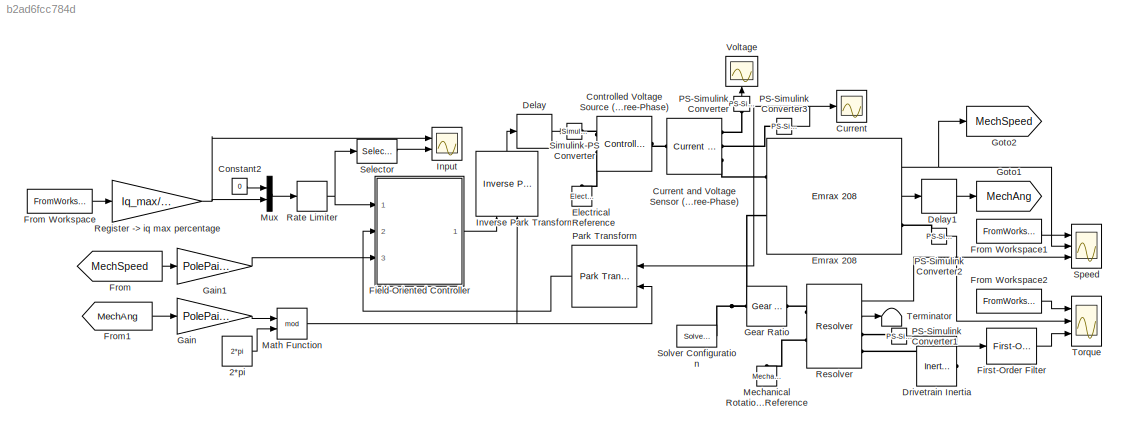
MODEL slx_b2ad6fcc784d
KIND model
CONFIG AbsTol = auto
CONFIG EnableMultiTasking = off
CONFIG FixedStep = auto
CONFIG InitFcn = %DriveTrainInitialise;
CONFIG MaxStep = Ts*10
CONFIG MinStep = auto
CONFIG RelTol = 1e-3
CONFIG SampleTimeConstraint = Unconstrained
CONFIG Solver = VariableStepAuto
CONFIG SolverName = VariableStepAuto
CONFIG StartTime = 0.0
CONFIG StopTime = 90.0
BLOCK [Constant] 2*pi
  SampleTime = Tsc
  Value = 2*pi
BLOCK [Constant] Constant2
  Value = 0
BLOCK [Reference] Controlled Voltage Source (Three-Phase)  REF=ee_lib/Sources/Controlled Voltage
Source
(Three-Phase)
  Ports = [0, 0, 0, 0, 0, 2, 1]
  SourceBlock = ee_lib/Sources/Controlled Voltage\nSource\n(Three-Phase)
  SourceProductBaseCode = PS
  SourceProductName = Simscape Electrical
  SourceType = Controlled Voltage\nSource\n(Three-Phase)
BLOCK [Scope] Current
  Floating = off
  NumInputPorts = 1
  Ports = [1]
  ScopeSpecificationString = Simulink.scopes.TimeScopeBlockCfg('CurrentConfiguration', extmgr.ConfigurationSet(extmgr.Configuration('Core','General UI',true),extmgr.Configuration('Core','Source UI',true),extmgr.Configuration('Sources','WiredSimulink',true),extmgr.Configuration('Visuals','Time Domain',true,'SerializedDisplays',{struct('MinYLimReal','-9.31374','MaxYLimReal','9.31375','YLabelReal','','MinYLimMag','0.00000','MaxY...<+1448ch>
BLOCK [Reference] Current and Voltage Sensor (Three-Phase)  REF=ee_lib/Sensors &
Transducers/Current and Voltage
Sensor (Three-Phase)
  Ports = [0, 0, 0, 0, 0, 1, 3]
  SourceBlock = ee_lib/Sensors &\nTransducers/Current and Voltage\nSensor (Three-Phase)
  SourceProductBaseCode = PS
  SourceProductName = Simscape Electrical
  SourceType = Current and Voltage\nSensor (Three-Phase)
BLOCK [Delay] Delay
  DelayLength = 1
  InputPortMap = u0
  Ports = [1, 1]
BLOCK [Delay] Delay1
  DelayLength = 1
  InputPortMap = u0
  Ports = [1, 1]
BLOCK [Reference] Drivetrain Inertia  REF=fl_lib/Mechanical/Rotational Elements/Inertia
  Ports = [0, 0, 0, 0, 0, 1]
  SourceBlock = fl_lib/Mechanical/Rotational Elements/Inertia
  SourceProductBaseCode = SS
  SourceProductName = Simscape
  SourceType = Inertia
BLOCK [Reference] Electrical Reference  REF=fl_lib/Electrical/Electrical Elements/Electrical Reference
  Ports = [0, 0, 0, 0, 0, 1]
  SourceBlock = fl_lib/Electrical/Electrical Elements/Electrical Reference
  SourceProductBaseCode = SS
  SourceProductName = Simscape
  SourceType = Electrical Reference
BLOCK [Reference] Emrax 208  REF=MotorLIB/Emrax 208
  Ports = [0, 2, 0, 0, 0, 2, 1]
  SourceBlock = MotorLIB/Emrax 208
  SourceType = Emrax 208
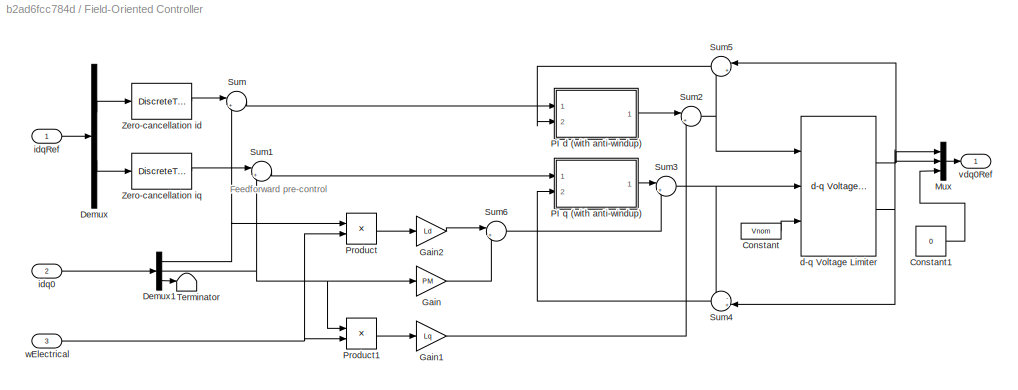
BLOCK [SubSystem] Field-Oriented Controller
  Ports = [3, 1]
  RequestExecContextInheritance = off
BLOCK [Constant] Field-Oriented Controller/Constant
  Value = Vnom
BLOCK [Constant] Field-Oriented Controller/Constant1
  Value = 0
BLOCK [Demux] Field-Oriented Controller/Demux
  DisplayOption = bar
  Outputs = 2
  Ports = [1, 2]
BLOCK [Demux] Field-Oriented Controller/Demux1
  DisplayOption = bar
  Outputs = 3
  Ports = [1, 3]
BLOCK [Gain] Field-Oriented Controller/Gain
  Gain = PM
  OutDataTypeStr = Inherit: Inherit via internal rule
  ParamDataTypeStr = Inherit: Inherit via internal rule
  SaturateOnIntegerOverflow = off
BLOCK [Gain] Field-Oriented Controller/Gain1
  Gain = Lq
  OutDataTypeStr = Inherit: Inherit via internal rule
  ParamDataTypeStr = Inherit: Inherit via internal rule
  SaturateOnIntegerOverflow = off
BLOCK [Gain] Field-Oriented Controller/Gain2
  Gain = Ld
  OutDataTypeStr = Inherit: Inherit via internal rule
  ParamDataTypeStr = Inherit: Inherit via internal rule
  SaturateOnIntegerOverflow = off
BLOCK [Mux] Field-Oriented Controller/Mux
  DisplayOption = bar
  Inputs = 3
  Ports = [3, 1]
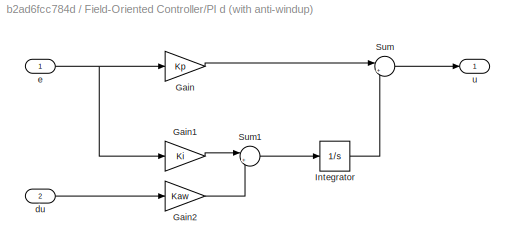
BLOCK [SubSystem] Field-Oriented Controller/PI d (with anti-windup)
  Ports = [2, 1]
  RequestExecContextInheritance = off
BLOCK [Gain] Field-Oriented Controller/PI d (with anti-windup)/Gain
  Gain = Kp
  OutDataTypeStr = Inherit: Inherit via internal rule
  ParamDataTypeStr = Inherit: Inherit via internal rule
  SaturateOnIntegerOverflow = off
BLOCK [Gain] Field-Oriented Controller/PI d (with anti-windup)/Gain1
  Gain = Ki
  OutDataTypeStr = Inherit: Inherit via internal rule
  ParamDataTypeStr = Inherit: Inherit via internal rule
  SaturateOnIntegerOverflow = off
BLOCK [Gain] Field-Oriented Controller/PI d (with anti-windup)/Gain2
  Gain = Kaw
  OutDataTypeStr = Inherit: Inherit via internal rule
  ParamDataTypeStr = Inherit: Inherit via internal rule
  SaturateOnIntegerOverflow = off
BLOCK [Integrator] Field-Oriented Controller/PI d (with anti-windup)/Integrator
  Ports = [1, 1]
BLOCK [Sum] Field-Oriented Controller/PI d (with anti-windup)/Sum
  IconShape = round
  InputSameDT = off
  Inputs = |++
  OutDataTypeStr = Inherit: Inherit via internal rule
  Ports = [2, 1]
  SaturateOnIntegerOverflow = off
BLOCK [Sum] Field-Oriented Controller/PI d (with anti-windup)/Sum1
  IconShape = round
  InputSameDT = off
  Inputs = |++
  OutDataTypeStr = Inherit: Inherit via internal rule
  Ports = [2, 1]
  SaturateOnIntegerOverflow = off
BLOCK [Inport] Field-Oriented Controller/PI d (with anti-windup)/du
  IconDisplay = Port number
  Port = 2
  SampleTime = Ts
BLOCK [Inport] Field-Oriented Controller/PI d (with anti-windup)/e
  IconDisplay = Port number
  SampleTime = Ts
BLOCK [Outport] Field-Oriented Controller/PI d (with anti-windup)/u
  IconDisplay = Port number
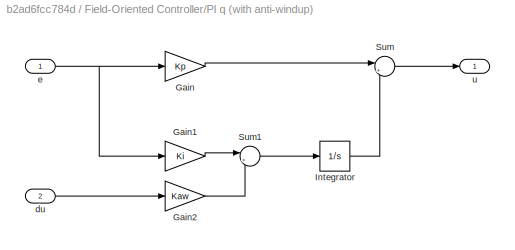
BLOCK [SubSystem] Field-Oriented Controller/PI q (with anti-windup)
  Ports = [2, 1]
  RequestExecContextInheritance = off
BLOCK [Gain] Field-Oriented Controller/PI q (with anti-windup)/Gain
  Gain = Kp
  OutDataTypeStr = Inherit: Inherit via internal rule
  ParamDataTypeStr = Inherit: Inherit via internal rule
  SaturateOnIntegerOverflow = off
BLOCK [Gain] Field-Oriented Controller/PI q (with anti-windup)/Gain1
  Gain = Ki
  OutDataTypeStr = Inherit: Inherit via internal rule
  ParamDataTypeStr = Inherit: Inherit via internal rule
  SaturateOnIntegerOverflow = off
BLOCK [Gain] Field-Oriented Controller/PI q (with anti-windup)/Gain2
  Gain = Kaw
  OutDataTypeStr = Inherit: Inherit via internal rule
  ParamDataTypeStr = Inherit: Inherit via internal rule
  SaturateOnIntegerOverflow = off
BLOCK [Integrator] Field-Oriented Controller/PI q (with anti-windup)/Integrator
  Ports = [1, 1]
BLOCK [Sum] Field-Oriented Controller/PI q (with anti-windup)/Sum
  IconShape = round
  InputSameDT = off
  Inputs = |++
  OutDataTypeStr = Inherit: Inherit via internal rule
  Ports = [2, 1]
  SaturateOnIntegerOverflow = off
BLOCK [Sum] Field-Oriented Controller/PI q (with anti-windup)/Sum1
  IconShape = round
  InputSameDT = off
  Inputs = |++
  OutDataTypeStr = Inherit: Inherit via internal rule
  Ports = [2, 1]
  SaturateOnIntegerOverflow = off
BLOCK [Inport] Field-Oriented Controller/PI q (with anti-windup)/du
  IconDisplay = Port number
  Port = 2
  SampleTime = Ts
BLOCK [Inport] Field-Oriented Controller/PI q (with anti-windup)/e
  IconDisplay = Port number
  SampleTime = Ts
BLOCK [Outport] Field-Oriented Controller/PI q (with anti-windup)/u
  IconDisplay = Port number
BLOCK [Product] Field-Oriented Controller/Product
  InputSameDT = off
  OutDataTypeStr = Inherit: Inherit via internal rule
  Ports = [2, 1]
  RndMeth = Floor
  SaturateOnIntegerOverflow = off
BLOCK [Product] Field-Oriented Controller/Product1
  InputSameDT = off
  OutDataTypeStr = Inherit: Inherit via internal rule
  Ports = [2, 1]
  RndMeth = Floor
  SaturateOnIntegerOverflow = off
BLOCK [Sum] Field-Oriented Controller/Sum
  IconShape = round
  InputSameDT = off
  Inputs = |+-
  OutDataTypeStr = Inherit: Inherit via internal rule
  Ports = [2, 1]
  SaturateOnIntegerOverflow = off
BLOCK [Sum] Field-Oriented Controller/Sum1
  IconShape = round
  InputSameDT = off
  Inputs = |+-
  OutDataTypeStr = Inherit: Inherit via internal rule
  Ports = [2, 1]
  SaturateOnIntegerOverflow = off
BLOCK [Sum] Field-Oriented Controller/Sum2
  IconShape = round
  InputSameDT = off
  Inputs = |+-
  OutDataTypeStr = Inherit: Inherit via internal rule
  Ports = [2, 1]
  SaturateOnIntegerOverflow = off
BLOCK [Sum] Field-Oriented Controller/Sum3
  IconShape = round
  InputSameDT = off
  Inputs = |++
  OutDataTypeStr = Inherit: Inherit via internal rule
  Ports = [2, 1]
  SaturateOnIntegerOverflow = off
BLOCK [Sum] Field-Oriented Controller/Sum4
  IconShape = round
  InputSameDT = off
  Inputs = -+|
  OutDataTypeStr = Inherit: Inherit via internal rule
  Ports = [2, 1]
  SaturateOnIntegerOverflow = off
BLOCK [Sum] Field-Oriented Controller/Sum5
  IconShape = round
  InputSameDT = off
  Inputs = |+-
  OutDataTypeStr = Inherit: Inherit via internal rule
  Ports = [2, 1]
  SaturateOnIntegerOverflow = off
BLOCK [Sum] Field-Oriented Controller/Sum6
  IconShape = round
  InputSameDT = off
  Inputs = |++
  OutDataTypeStr = Inherit: Inherit via internal rule
  Ports = [2, 1]
  SaturateOnIntegerOverflow = off
BLOCK [Terminator] Field-Oriented Controller/Terminator
BLOCK [DiscreteTransferFcn] Field-Oriented Controller/Zero-cancellation id
  Commented = through
  Denominator = denZC_id
  InputPortMap = u0
  Numerator = numZC_id
  Ports = [1, 1]
  SampleTime = Ts
BLOCK [DiscreteTransferFcn] Field-Oriented Controller/Zero-cancellation iq
  Commented = through
  Denominator = denZC_iq
  InputPortMap = u0
  Numerator = numZC_iq
  Ports = [1, 1]
  SampleTime = Ts
BLOCK [Reference] Field-Oriented Controller/d-q Voltage Limiter  REF=eeDqVoltageLimiter/d-q Voltage Limiter
  Ports = [3, 2]
  SourceBlock = eeDqVoltageLimiter/d-q Voltage Limiter
  SourceProductBaseCode = PS
  SourceProductName = Simscape Electrical
  SourceType = d-q Voltage Limiter
BLOCK [Inport] Field-Oriented Controller/idq0
  IconDisplay = Port number
  Port = 2
  SampleTime = Ts
BLOCK [Inport] Field-Oriented Controller/idqRef
  IconDisplay = Port number
  SampleTime = Ts
BLOCK [Outport] Field-Oriented Controller/vdq0Ref
  IconDisplay = Port number
BLOCK [Inport] Field-Oriented Controller/wElectrical
  IconDisplay = Port number
  Port = 3
  SampleTime = Ts
BLOCK [Reference] First-Order Filter  REF=powerlib_meascontrol/Filters/First-Order
Filter
  Ports = [1, 1]
  SourceBlock = powerlib_meascontrol/Filters/First-Order\nFilter
  SourceProductBaseCode = PS
  SourceProductName = Simscape Electrical
  SourceType = First-Order Filter
BLOCK [From] From
  GotoTag = MechSpeed
BLOCK [FromWorkspace] From Workspace
  SampleTime = 0
  VariableName = sim.input
  ZeroCross = on
BLOCK [FromWorkspace] From Workspace1
  SampleTime = 0
  VariableName = sim.speed
  ZeroCross = on
BLOCK [FromWorkspace] From Workspace2
  SampleTime = 0
  VariableName = sim.torque
  ZeroCross = on
BLOCK [From] From1
  GotoTag = MechAng
BLOCK [Gain] Gain
  Gain = PolePairs
  OutDataTypeStr = Inherit: Inherit via internal rule
  ParamDataTypeStr = Inherit: Inherit via internal rule
  SaturateOnIntegerOverflow = off
BLOCK [Gain] Gain1
  Gain = PolePairs
  OutDataTypeStr = Inherit: Inherit via internal rule
  ParamDataTypeStr = Inherit: Inherit via internal rule
  SaturateOnIntegerOverflow = off
BLOCK [Reference] Gear Ratio  REF=fl_lib/Mechanical/Mechanisms/Gear Box
  Ports = [0, 0, 0, 0, 0, 1, 1]
  SourceBlock = fl_lib/Mechanical/Mechanisms/Gear Box
  SourceProductBaseCode = SS
  SourceProductName = Simscape
  SourceType = Gear Box
BLOCK [Goto] Goto1
  GotoTag = MechAng
BLOCK [Goto] Goto2
  GotoTag = MechSpeed
BLOCK [Scope] Input
  Floating = off
  NumInputPorts = 2
  Ports = [2]
  ScopeSpecificationString = Simulink.scopes.TimeScopeBlockCfg('CurrentConfiguration', extmgr.ConfigurationSet(extmgr.Configuration('Core','General UI',true),extmgr.Configuration('Core','Source UI',true),extmgr.Configuration('Sources','WiredSimulink',true,'DataLoggingVariableName','ScopeData4'),extmgr.Configuration('Visuals','Time Domain',true,'SerializedDisplays',{struct('MinYLimReal','-0.98603','MaxYLimReal','8.87424','YLab...<+1426ch>
BLOCK [Reference] Inverse Park Transform  REF=eeTransforms/Inverse
Park Transform
  Ports = [2, 1]
  SourceBlock = eeTransforms/Inverse\nPark Transform
  SourceProductBaseCode = PS
  SourceProductName = Simscape Electrical
  SourceType = Inverse Park Transform
BLOCK [Math] Math Function
  Operator = mod
  Ports = [2, 1]
BLOCK [Reference] Mechanical Rotational Reference  REF=fl_lib/Mechanical/Rotational Elements/Mechanical
Rotational Reference
  Ports = [0, 0, 0, 0, 0, 1]
  SourceBlock = fl_lib/Mechanical/Rotational Elements/Mechanical\nRotational Reference
  SourceProductBaseCode = SS
  SourceProductName = Simscape
  SourceType = Mechanical\nRotational Reference
BLOCK [Mux] Mux
  DisplayOption = bar
  Inputs = 2
  Ports = [2, 1]
BLOCK [Reference] PS-Simulink Converter  REF=nesl_utility/PS-Simulink
Converter
  Ports = [0, 1, 0, 0, 0, 1]
  SourceBlock = nesl_utility/PS-Simulink\nConverter
  SourceProductBaseCode = SS
  SourceProductName = Simscape
  SourceType = PS-Simulink\nConverter
BLOCK [Reference] PS-Simulink Converter1  REF=nesl_utility/PS-Simulink
Converter
  Ports = [0, 1, 0, 0, 0, 1]
  SourceBlock = nesl_utility/PS-Simulink\nConverter
  SourceProductBaseCode = SS
  SourceProductName = Simscape
  SourceType = PS-Simulink\nConverter
BLOCK [Reference] PS-Simulink Converter2  REF=nesl_utility/PS-Simulink
Converter
  Ports = [0, 1, 0, 0, 0, 1]
  SourceBlock = nesl_utility/PS-Simulink\nConverter
  SourceProductBaseCode = SS
  SourceProductName = Simscape
  SourceType = PS-Simulink\nConverter
BLOCK [Reference] PS-Simulink Converter3  REF=nesl_utility/PS-Simulink
Converter
  Ports = [0, 1, 0, 0, 0, 1]
  SourceBlock = nesl_utility/PS-Simulink\nConverter
  SourceProductBaseCode = SS
  SourceProductName = Simscape
  SourceType = PS-Simulink\nConverter
BLOCK [Reference] Park Transform  REF=eeTransforms/Park Transform
  Ports = [2, 1]
  SourceBlock = eeTransforms/Park Transform
  SourceProductBaseCode = PS
  SourceProductName = Simscape Electrical
  SourceType = Park Transform
BLOCK [RateLimiter] Rate Limiter
  FallingSlewLimit = -10
  RisingSlewLimit = 10
  SampleTimeMode = inherited
BLOCK [Gain] Register -> iq max percentage
  Gain = Iq_max/32276
  OutDataTypeStr = Inherit: Inherit via internal rule
  ParamDataTypeStr = Inherit: Inherit via internal rule
  SaturateOnIntegerOverflow = off
BLOCK [Reference] Resolver  REF=MotorLIB/Emrax 208/Resolver
  Ports = [0, 2, 0, 0, 0, 2, 2]
  SourceBlock = MotorLIB/Emrax 208/Resolver
  SourceType = SubSystem
BLOCK [Selector] Selector
  IndexOptions = Index vector (dialog)
  Indices = [2]
  InputPortWidth = 2
  OutputSizes = 1
  Ports = [1, 1]
BLOCK [Reference] Simulink-PS Converter  REF=nesl_utility/Simulink-PS
Converter
  Ports = [1, 0, 0, 0, 0, 0, 1]
  SourceBlock = nesl_utility/Simulink-PS\nConverter
  SourceProductBaseCode = SS
  SourceProductName = Simscape
  SourceType = Simulink-PS\nConverter
BLOCK [Reference] Solver Configuration  REF=nesl_utility/Solver
Configuration
  Ports = [0, 0, 0, 0, 0, 0, 1]
  SourceBlock = nesl_utility/Solver\nConfiguration
  SourceProductBaseCode = SS
  SourceProductName = Simscape
  SourceType = Solver\nConfiguration
BLOCK [Scope] Speed
  Floating = off
  NumInputPorts = 3
  Ports = [3]
  ScopeSpecificationString = Simulink.scopes.TimeScopeBlockCfg('CurrentConfiguration', extmgr.ConfigurationSet(extmgr.Configuration('Core','General UI',true),extmgr.Configuration('Core','Source UI',true),extmgr.Configuration('Sources','WiredSimulink',true,'DataLoggingVariableName','ScopeData2'),extmgr.Configuration('Visuals','Time Domain',true,'SerializedDisplays',{struct('MinYLimReal','-18.02255','MaxYLimReal','162.20295','Y...<+1456ch>
BLOCK [Terminator] Terminator
BLOCK [Scope] Torque
  Floating = off
  NumInputPorts = 3
  Ports = [3]
  ScopeSpecificationString = Simulink.scopes.TimeScopeBlockCfg('CurrentConfiguration', extmgr.ConfigurationSet(extmgr.Configuration('Core','General UI',true),extmgr.Configuration('Core','Source UI',true),extmgr.Configuration('Sources','WiredSimulink',true,'DataLoggingVariableName','ScopeData1'),extmgr.Configuration('Visuals','Time Domain',true,'SerializedDisplays',{struct('MinYLimReal','-2.5625','MaxYLimReal','13.0625','YLabe...<+1491ch>
BLOCK [Scope] Voltage
  Floating = off
  NumInputPorts = 1
  Ports = [1]
  ScopeSpecificationString = Simulink.scopes.TimeScopeBlockCfg('CurrentConfiguration', extmgr.ConfigurationSet(extmgr.Configuration('Core','General UI',true),extmgr.Configuration('Core','Source UI',true),extmgr.Configuration('Sources','WiredSimulink',true,'DataLoggingVariableName','ScopeData3'),extmgr.Configuration('Visuals','Time Domain',true,'SerializedDisplays',{struct('MinYLimReal','-87.63852','MaxYLimReal','87.63651','YL...<+1508ch>
ANNOTATION Field-Oriented Controller: Feedforward pre-control
LINE 2*pi:1 -> Math Function:2
LINE Constant2:1 -> Mux:1
LINE Delay1:1 -> Goto1:1
LINE Delay:1 -> Simulink-PS Converter:1
NET Emrax 208:1 -> Goto2:1, Speed:2
LINE Emrax 208:2 -> Delay1:1
LINE Field-Oriented Controller/Constant1:1 -> Field-Oriented Controller/Mux:3
LINE Field-Oriented Controller/Constant:1 -> Field-Oriented Controller/d-q Voltage Limiter:3
NET Field-Oriented Controller/Demux1:1 -> Field-Oriented Controller/Product:1, Field-Oriented Controller/Sum:2
NET Field-Oriented Controller/Demux1:2 -> Field-Oriented Controller/Gain:1, Field-Oriented Controller/Product1:1, Field-Oriented Controller/Sum1:2
LINE Field-Oriented Controller/Demux1:3 -> Field-Oriented Controller/Terminator:1
LINE Field-Oriented Controller/Demux:1 -> Field-Oriented Controller/Zero-cancellation id:1
LINE Field-Oriented Controller/Demux:2 -> Field-Oriented Controller/Zero-cancellation iq:1
LINE Field-Oriented Controller/Gain1:1 -> Field-Oriented Controller/Sum2:2
LINE Field-Oriented Controller/Gain2:1 -> Field-Oriented Controller/Sum6:1
LINE Field-Oriented Controller/Gain:1 -> Field-Oriented Controller/Sum6:2
LINE Field-Oriented Controller/Mux:1 -> Field-Oriented Controller/vdq0Ref:1
LINE Field-Oriented Controller/PI d (with anti-windup)/Gain1:1 -> Field-Oriented Controller/PI d (with anti-windup)/Sum1:1
LINE Field-Oriented Controller/PI d (with anti-windup)/Gain2:1 -> Field-Oriented Controller/PI d (with anti-windup)/Sum1:2
LINE Field-Oriented Controller/PI d (with anti-windup)/Gain:1 -> Field-Oriented Controller/PI d (with anti-windup)/Sum:1
LINE Field-Oriented Controller/PI d (with anti-windup)/Integrator:1 -> Field-Oriented Controller/PI d (with anti-windup)/Sum:2
LINE Field-Oriented Controller/PI d (with anti-windup)/Sum1:1 -> Field-Oriented Controller/PI d (with anti-windup)/Integrator:1
LINE Field-Oriented Controller/PI d (with anti-windup)/Sum:1 -> Field-Oriented Controller/PI d (with anti-windup)/u:1
LINE Field-Oriented Controller/PI d (with anti-windup)/du:1 -> Field-Oriented Controller/PI d (with anti-windup)/Gain2:1
NET Field-Oriented Controller/PI d (with anti-windup)/e:1 -> Field-Oriented Controller/PI d (with anti-windup)/Gain1:1, Field-Oriented Controller/PI d (with anti-windup)/Gain:1
LINE Field-Oriented Controller/PI d (with anti-windup):1 -> Field-Oriented Controller/Sum2:1
LINE Field-Oriented Controller/PI q (with anti-windup)/Gain1:1 -> Field-Oriented Controller/PI q (with anti-windup)/Sum1:1
LINE Field-Oriented Controller/PI q (with anti-windup)/Gain2:1 -> Field-Oriented Controller/PI q (with anti-windup)/Sum1:2
LINE Field-Oriented Controller/PI q (with anti-windup)/Gain:1 -> Field-Oriented Controller/PI q (with anti-windup)/Sum:1
LINE Field-Oriented Controller/PI q (with anti-windup)/Integrator:1 -> Field-Oriented Controller/PI q (with anti-windup)/Sum:2
LINE Field-Oriented Controller/PI q (with anti-windup)/Sum1:1 -> Field-Oriented Controller/PI q (with anti-windup)/Integrator:1
LINE Field-Oriented Controller/PI q (with anti-windup)/Sum:1 -> Field-Oriented Controller/PI q (with anti-windup)/u:1
LINE Field-Oriented Controller/PI q (with anti-windup)/du:1 -> Field-Oriented Controller/PI q (with anti-windup)/Gain2:1
NET Field-Oriented Controller/PI q (with anti-windup)/e:1 -> Field-Oriented Controller/PI q (with anti-windup)/Gain1:1, Field-Oriented Controller/PI q (with anti-windup)/Gain:1
LINE Field-Oriented Controller/PI q (with anti-windup):1 -> Field-Oriented Controller/Sum3:1
LINE Field-Oriented Controller/Product1:1 -> Field-Oriented Controller/Gain1:1
LINE Field-Oriented Controller/Product:1 -> Field-Oriented Controller/Gain2:1
LINE Field-Oriented Controller/Sum1:1 -> Field-Oriented Controller/PI q (with anti-windup):1
NET Field-Oriented Controller/Sum2:1 -> Field-Oriented Controller/Sum5:2, Field-Oriented Controller/d-q Voltage Limiter:1
NET Field-Oriented Controller/Sum3:1 -> Field-Oriented Controller/Sum4:1, Field-Oriented Controller/d-q Voltage Limiter:2
LINE Field-Oriented Controller/Sum4:1 -> Field-Oriented Controller/PI q (with anti-windup):2
LINE Field-Oriented Controller/Sum5:1 -> Field-Oriented Controller/PI d (with anti-windup):2
LINE Field-Oriented Controller/Sum6:1 -> Field-Oriented Controller/Sum3:2
LINE Field-Oriented Controller/Sum:1 -> Field-Oriented Controller/PI d (with anti-windup):1
LINE Field-Oriented Controller/Zero-cancellation id:1 -> Field-Oriented Controller/Sum:1
LINE Field-Oriented Controller/Zero-cancellation iq:1 -> Field-Oriented Controller/Sum1:1
NET Field-Oriented Controller/d-q Voltage Limiter:1 -> Field-Oriented Controller/Mux:1, Field-Oriented Controller/Sum5:1
NET Field-Oriented Controller/d-q Voltage Limiter:2 -> Field-Oriented Controller/Mux:2, Field-Oriented Controller/Sum4:2
LINE Field-Oriented Controller/idq0:1 -> Field-Oriented Controller/Demux1:1
LINE Field-Oriented Controller/idqRef:1 -> Field-Oriented Controller/Demux:1
NET Field-Oriented Controller/wElectrical:1 -> Field-Oriented Controller/Product1:2, Field-Oriented Controller/Product:2
LINE Field-Oriented Controller:1 -> Inverse Park Transform:1
LINE First-Order Filter:1 -> Torque:3
LINE From Workspace1:1 -> Speed:1
LINE From Workspace2:1 -> Torque:1
LINE From Workspace:1 -> Register -> iq max percentage:1
LINE From1:1 -> Gain:1
LINE From:1 -> Gain1:1
LINE Gain1:1 -> Field-Oriented Controller:3
LINE Gain:1 -> Math Function:1
LINE Inverse Park Transform:1 -> Delay:1
NET Math Function:1 -> Inverse Park Transform:2, Park Transform:2
LINE Mux:1 -> Rate Limiter:1
LINE PS-Simulink Converter1:1 -> First-Order Filter:1
LINE PS-Simulink Converter2:1 -> Torque:2
NET PS-Simulink Converter3:1 -> Current:1, Park Transform:1
LINE PS-Simulink Converter:1 -> Voltage:1
LINE Park Transform:1 -> Field-Oriented Controller:2
NET Rate Limiter:1 -> Field-Oriented Controller:1, Selector:1
NET Register -> iq max percentage:1 -> Input:1, Mux:2
LINE Resolver:1 -> Speed:3
LINE Resolver:2 -> Terminator:1
LINE Selector:1 -> Input:2
PLINE Controlled Voltage Source (Three-Phase):LConn1 -- Simulink-PS Converter:RConn1
PLINE Controlled Voltage Source (Three-Phase):LConn2 -- Electrical Reference:LConn1
PLINE Controlled Voltage Source (Three-Phase):RConn1 -- Current and Voltage Sensor (Three-Phase):LConn1
PLINE Current and Voltage Sensor (Three-Phase):RConn1 -- PS-Simulink Converter:LConn1
PLINE Current and Voltage Sensor (Three-Phase):RConn2 -- PS-Simulink Converter3:LConn1
PLINE Current and Voltage Sensor (Three-Phase):RConn3 -- Emrax 208:LConn1
PLINE Drivetrain Inertia:LConn1 -- Resolver:RConn2
PNET net1: Emrax 208:LConn2 -- Gear Ratio:LConn1 -- Solver Configuration:RConn1
PLINE Emrax 208:RConn1 -- PS-Simulink Converter2:LConn1
PLINE Gear Ratio:RConn1 -- Resolver:LConn1
PLINE Mechanical Rotational Reference:LConn1 -- Resolver:LConn2
PLINE PS-Simulink Converter1:LConn1 -- Resolver:RConn1
note: NET lines group one-source signal fan-out (src -> all destinations, sorted); 1:1 wires keep LINE; PNET lines group multi-terminal physical nets as a canonical sorted terminal list (undirected conserving connections); 2-terminal nets keep the pairwise PLINE form
